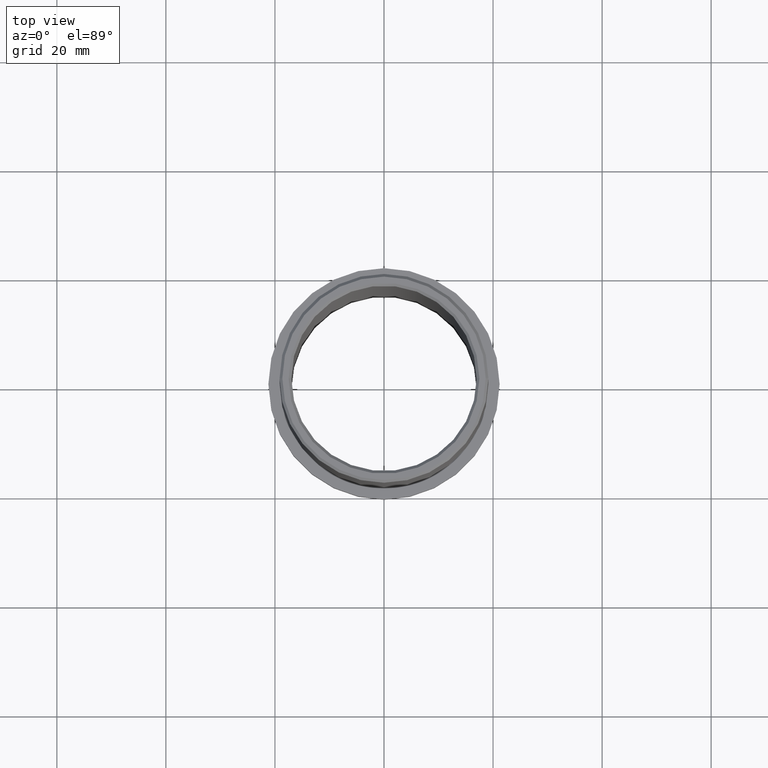
[diagram: clean part render]
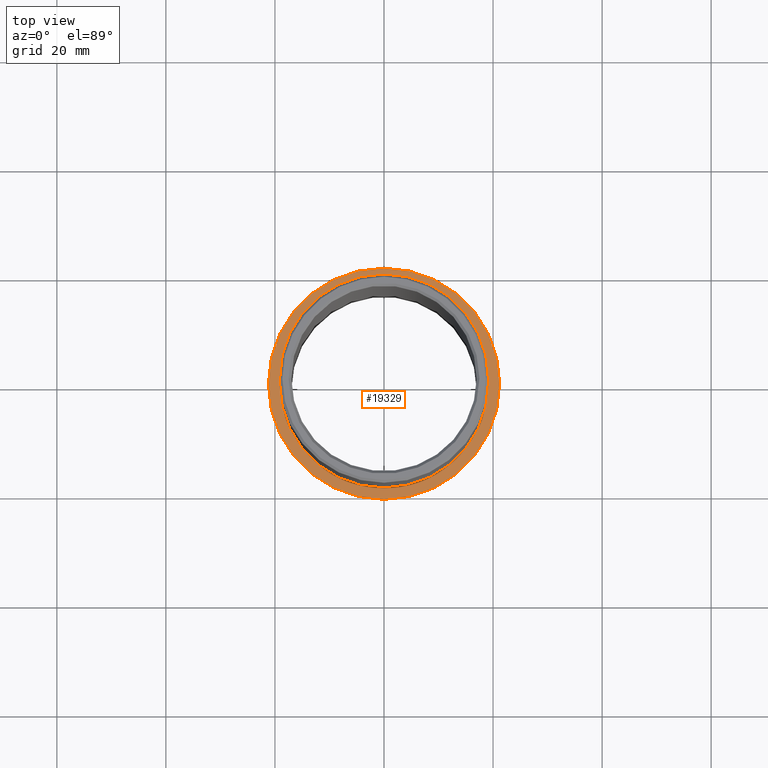
[diagram: same view with one face highlighted and labeled with its STEP entity id]
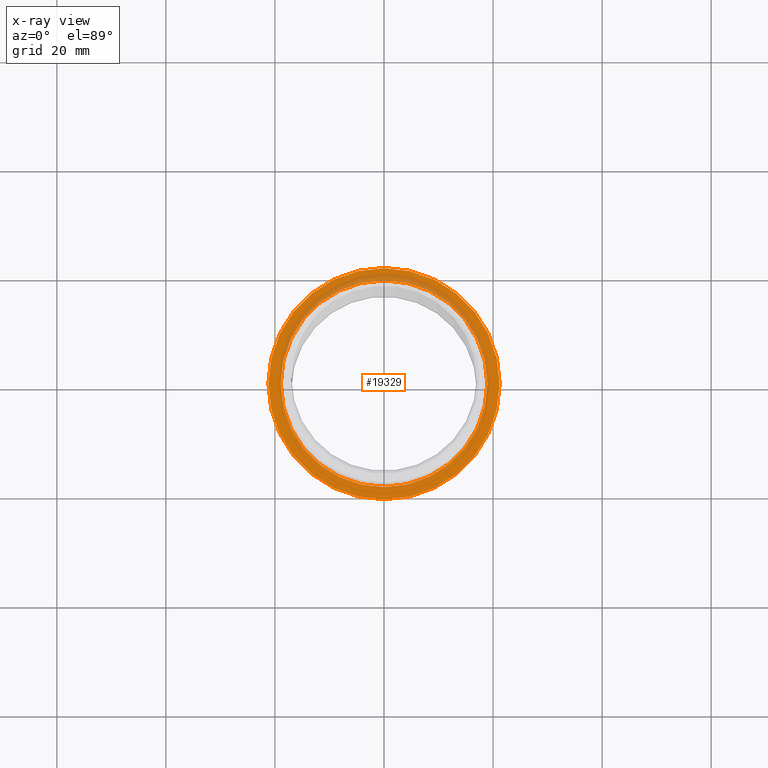
[diagram: x-ray of the same camera — body ghosted, the highlighted face saturated]
A machine part, top view. The second image highlights one B-rep face of the part: STEP entity #19329.
The next image is the same camera in x-ray: the body ghosted, the highlighted face saturated — about 19% of this face is hidden behind the body in this view.
In plain terms, the highlighted planar face has unit normal (0, 0, 1).
Its self-contained STEP definition (entity closure, byte-faithful):
#1158 = AXIS2_PLACEMENT_3D ( 'NONE', #15227, #11536, #4775 ) ;
#2243 = DIRECTION ( 'NONE',  ( 0.0000000000000000000, 0.0000000000000000000, 1.000000000000000000 ) ) ;
#2785 = AXIS2_PLACEMENT_3D ( 'NONE', #11213, #11295, #16261 ) ;
#3729 = AXIS2_PLACEMENT_3D ( 'NONE', #6875, #13555, #10300 ) ;
#4132 = DIRECTION ( 'NONE',  ( 1.000000000000000000, 0.0000000000000000000, 0.0000000000000000000 ) ) ;
#4628 = EDGE_CURVE ( 'NONE', #16511, #20144, #21616, .T. ) ;
#4775 = DIRECTION ( 'NONE',  ( 1.000000000000000000, 0.0000000000000000000, -0.0000000000000000000 ) ) ;
#4833 = VERTEX_POINT ( 'NONE', #5181 ) ;
#5181 = CARTESIAN_POINT ( 'NONE',  ( -18.95000000000000300, 0.0000000000000000000, 2.500000000000000000 ) ) ;
#5834 = ORIENTED_EDGE ( 'NONE', *, *, #16630, .F. ) ;
#6875 = CARTESIAN_POINT ( 'NONE',  ( 0.0000000000000000000, 0.0000000000000000000, 2.500000000000000000 ) ) ;
#7634 = CIRCLE ( 'NONE', #3729, 18.95000000000000300 ) ;
#7739 = PLANE ( 'NONE',  #1158 ) ;
#7858 = FACE_OUTER_BOUND ( 'NONE', #9770, .T. ) ;
#9047 = EDGE_CURVE ( 'NONE', #20144, #16511, #11072, .T. ) ;
#9180 = CARTESIAN_POINT ( 'NONE',  ( 21.19999999999999900, 2.596251214192388800E-015, 2.500000000000000000 ) ) ;
#9770 = EDGE_LOOP ( 'NONE', ( #19254, #10426 ) ) ;
#10300 = DIRECTION ( 'NONE',  ( 1.000000000000000000, 0.0000000000000000000, 0.0000000000000000000 ) ) ;
#10426 = ORIENTED_EDGE ( 'NONE', *, *, #9047, .T. ) ;
#11072 = CIRCLE ( 'NONE', #2785, 21.19999999999999900 ) ;
#11213 = CARTESIAN_POINT ( 'NONE',  ( 0.0000000000000000000, 0.0000000000000000000, 2.500000000000000000 ) ) ;
#11295 = DIRECTION ( 'NONE',  ( 0.0000000000000000000, 0.0000000000000000000, 1.000000000000000000 ) ) ;
#11536 = DIRECTION ( 'NONE',  ( 0.0000000000000000000, 0.0000000000000000000, 1.000000000000000000 ) ) ;
#12440 = CARTESIAN_POINT ( 'NONE',  ( 0.0000000000000000000, 0.0000000000000000000, 2.500000000000000000 ) ) ;
#12618 = DIRECTION ( 'NONE',  ( 0.0000000000000000000, 0.0000000000000000000, 1.000000000000000000 ) ) ;
#13555 = DIRECTION ( 'NONE',  ( 0.0000000000000000000, 0.0000000000000000000, 1.000000000000000000 ) ) ;
#13714 = FACE_BOUND ( 'NONE', #14961, .T. ) ;
#14374 = CARTESIAN_POINT ( 'NONE',  ( 0.0000000000000000000, 0.0000000000000000000, 2.500000000000000000 ) ) ;
#14961 = EDGE_LOOP ( 'NONE', ( #20253, #5834 ) ) ;
#15227 = CARTESIAN_POINT ( 'NONE',  ( 0.0000000000000000000, 0.0000000000000000000, 2.500000000000000000 ) ) ;
#15825 = DIRECTION ( 'NONE',  ( 1.000000000000000000, 0.0000000000000000000, 0.0000000000000000000 ) ) ;
#15831 = EDGE_CURVE ( 'NONE', #4833, #17885, #19455, .T. ) ;
#16188 = CARTESIAN_POINT ( 'NONE',  ( 18.95000000000000300, 2.320705684384234700E-015, 2.500000000000000000 ) ) ;
#16261 = DIRECTION ( 'NONE',  ( 1.000000000000000000, 0.0000000000000000000, 0.0000000000000000000 ) ) ;
#16511 = VERTEX_POINT ( 'NONE', #17692 ) ;
#16630 = EDGE_CURVE ( 'NONE', #17885, #4833, #7634, .T. ) ;
#17196 = AXIS2_PLACEMENT_3D ( 'NONE', #12440, #2243, #15825 ) ;
#17692 = CARTESIAN_POINT ( 'NONE',  ( -21.19999999999999900, 0.0000000000000000000, 2.500000000000000000 ) ) ;
#17885 = VERTEX_POINT ( 'NONE', #16188 ) ;
#19254 = ORIENTED_EDGE ( 'NONE', *, *, #4628, .T. ) ;
#19329 = ADVANCED_FACE ( 'NONE', ( #13714, #7858 ), #7739, .T. ) ;
#19455 = CIRCLE ( 'NONE', #17196, 18.95000000000000300 ) ;
#20144 = VERTEX_POINT ( 'NONE', #9180 ) ;
#20253 = ORIENTED_EDGE ( 'NONE', *, *, #15831, .F. ) ;
#21107 = AXIS2_PLACEMENT_3D ( 'NONE', #14374, #12618, #4132 ) ;
#21616 = CIRCLE ( 'NONE', #21107, 21.19999999999999900 ) ;